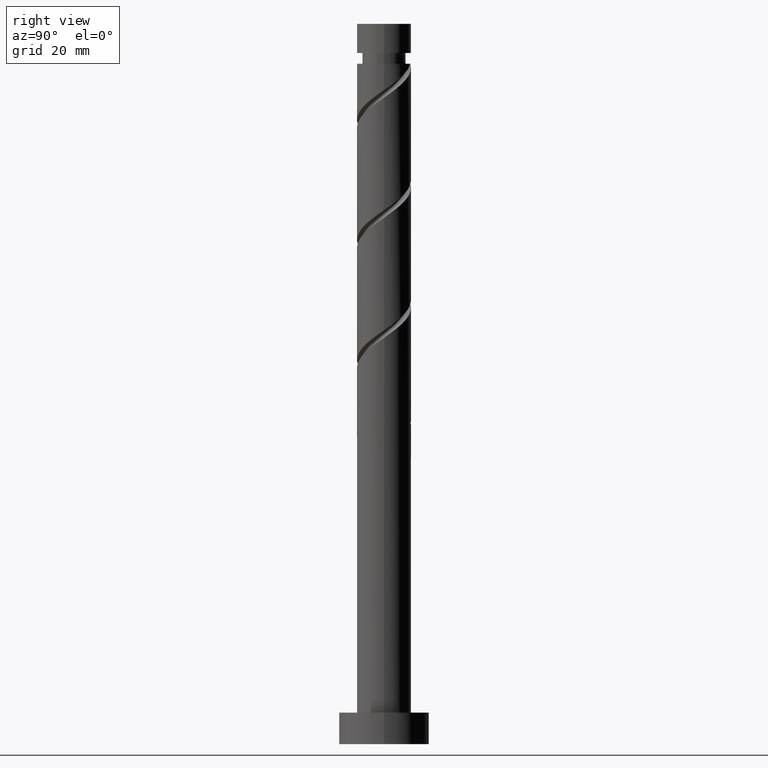
[diagram: clean part render]
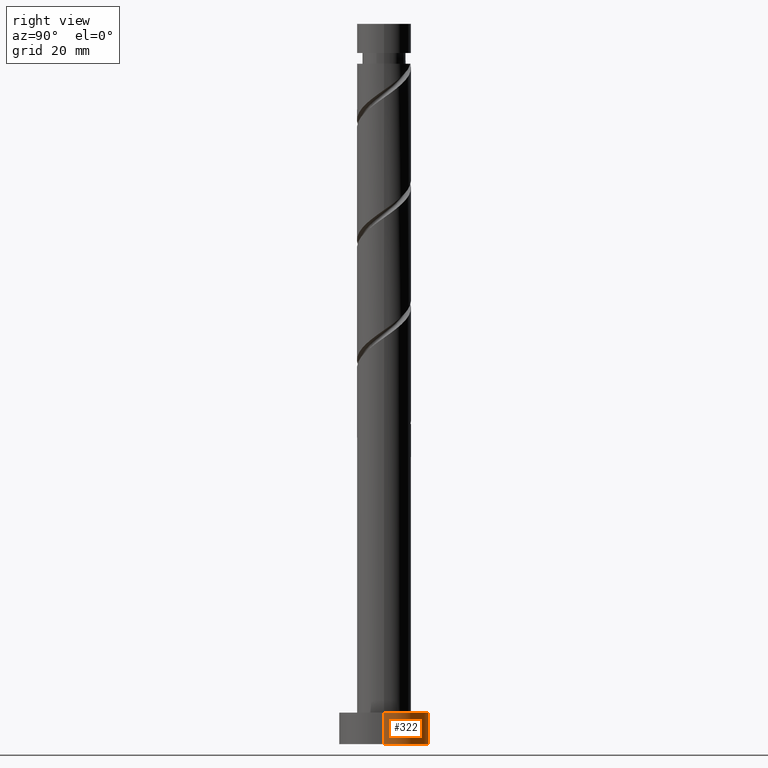
[diagram: same view with one face highlighted and labeled with its STEP entity id]
A machine part, right view. The second image highlights one B-rep face of the part: STEP entity #322.
In plain terms, the highlighted cylindrical surface (partial cylindrical patch) has radius 10 mm, axis along (-0, -0, -1).
Its self-contained STEP definition (entity closure, byte-faithful):
#60 = CIRCLE ( 'NONE', #88, 10.00000000000000000 ) ;
#88 = AXIS2_PLACEMENT_3D ( 'NONE', #1148, #744, #1021 ) ;
#118 = EDGE_LOOP ( 'NONE', ( #1068, #1010, #776, #1190 ) ) ;
#141 = CIRCLE ( 'NONE', #896, 10.00000000000000000 ) ;
#196 = CARTESIAN_POINT ( 'NONE',  ( -10.00000000000000000, 0.000000000000000000, 0.000000000000000000 ) ) ;
#202 = VECTOR ( 'NONE', #1052, 1000.000000000000000 ) ;
#227 = EDGE_CURVE ( 'NONE', #540, #704, #60, .T. ) ;
#322 = ADVANCED_FACE ( 'NONE', ( #1397 ), #615, .T. ) ;
#388 = CARTESIAN_POINT ( 'NONE',  ( 10.00000000000000000, 1.224646799147353256E-15, 0.000000000000000000 ) ) ;
#508 = CARTESIAN_POINT ( 'NONE',  ( 10.00000000000000000, 1.224646799147353256E-15, 7.000000000000000000 ) ) ;
#540 = VERTEX_POINT ( 'NONE', #508 ) ;
#585 = VERTEX_POINT ( 'NONE', #388 ) ;
#615 = CYLINDRICAL_SURFACE ( 'NONE', #1277, 10.00000000000000000 ) ;
#626 = CARTESIAN_POINT ( 'NONE',  ( 0.000000000000000000, 0.000000000000000000, 7.000000000000000000 ) ) ;
#704 = VERTEX_POINT ( 'NONE', #1181 ) ;
#728 = CARTESIAN_POINT ( 'NONE',  ( 0.000000000000000000, 0.000000000000000000, 0.000000000000000000 ) ) ;
#744 = DIRECTION ( 'NONE',  ( 0.000000000000000000, 0.000000000000000000, 1.000000000000000000 ) ) ;
#768 = EDGE_CURVE ( 'NONE', #585, #878, #141, .T. ) ;
#771 = CARTESIAN_POINT ( 'NONE',  ( 10.00000000000000000, 1.224646799147353256E-15, 7.000000000000000000 ) ) ;
#776 = ORIENTED_EDGE ( 'NONE', *, *, #768, .T. ) ;
#858 = DIRECTION ( 'NONE',  ( 1.000000000000000000, 0.000000000000000000, 0.000000000000000000 ) ) ;
#878 = VERTEX_POINT ( 'NONE', #196 ) ;
#896 = AXIS2_PLACEMENT_3D ( 'NONE', #728, #980, #858 ) ;
#899 = LINE ( 'NONE', #771, #1220 ) ;
#916 = CARTESIAN_POINT ( 'NONE',  ( -10.00000000000000000, 0.000000000000000000, 7.000000000000000000 ) ) ;
#980 = DIRECTION ( 'NONE',  ( 0.000000000000000000, 0.000000000000000000, 1.000000000000000000 ) ) ;
#993 = EDGE_CURVE ( 'NONE', #540, #585, #899, .T. ) ;
#1010 = ORIENTED_EDGE ( 'NONE', *, *, #993, .T. ) ;
#1021 = DIRECTION ( 'NONE',  ( 1.000000000000000000, 0.000000000000000000, 0.000000000000000000 ) ) ;
#1052 = DIRECTION ( 'NONE',  ( -0.000000000000000000, -0.000000000000000000, -1.000000000000000000 ) ) ;
#1068 = ORIENTED_EDGE ( 'NONE', *, *, #227, .F. ) ;
#1135 = DIRECTION ( 'NONE',  ( -0.000000000000000000, -0.000000000000000000, -1.000000000000000000 ) ) ;
#1148 = CARTESIAN_POINT ( 'NONE',  ( 0.000000000000000000, 0.000000000000000000, 7.000000000000000000 ) ) ;
#1181 = CARTESIAN_POINT ( 'NONE',  ( -10.00000000000000000, 0.000000000000000000, 7.000000000000000000 ) ) ;
#1190 = ORIENTED_EDGE ( 'NONE', *, *, #1444, .F. ) ;
#1220 = VECTOR ( 'NONE', #1291, 1000.000000000000000 ) ;
#1277 = AXIS2_PLACEMENT_3D ( 'NONE', #626, #1135, #1647 ) ;
#1291 = DIRECTION ( 'NONE',  ( -0.000000000000000000, -0.000000000000000000, -1.000000000000000000 ) ) ;
#1397 = FACE_OUTER_BOUND ( 'NONE', #118, .T. ) ;
#1444 = EDGE_CURVE ( 'NONE', #704, #878, #1659, .T. ) ;
#1647 = DIRECTION ( 'NONE',  ( -1.000000000000000000, 0.000000000000000000, 0.000000000000000000 ) ) ;
#1659 = LINE ( 'NONE', #916, #202 ) ;